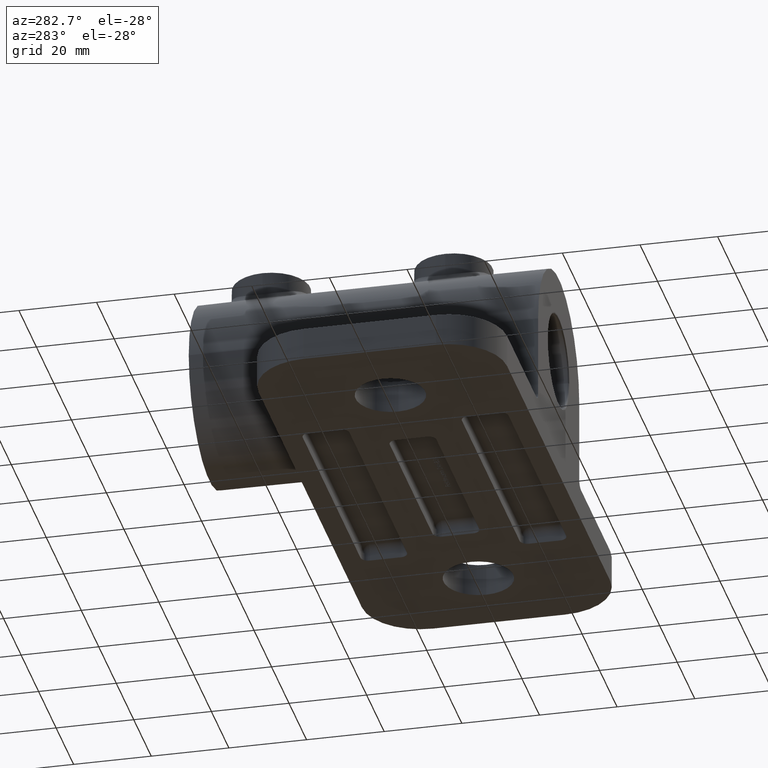
[diagram: clean part render]
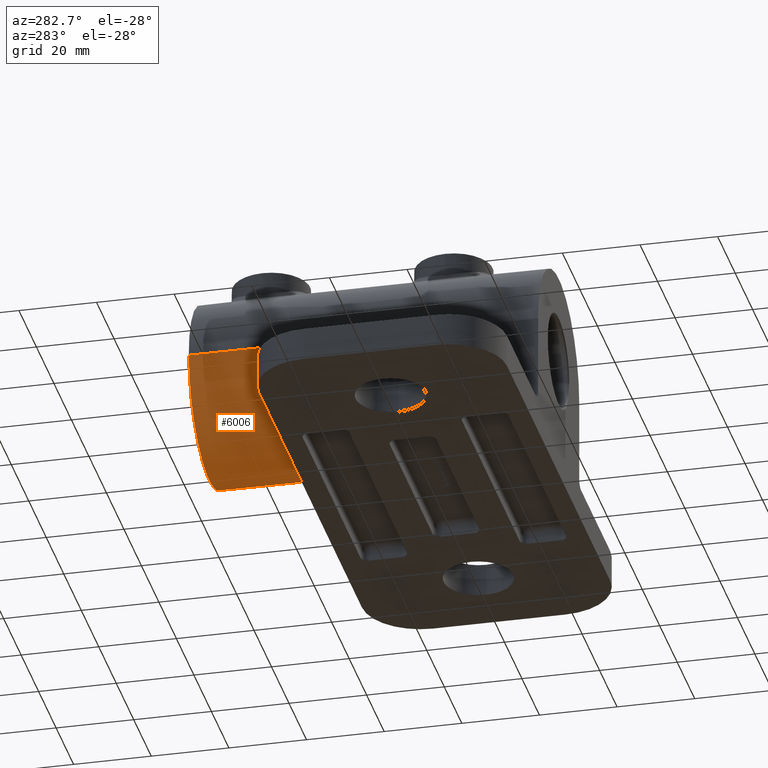
[diagram: same view with one face highlighted and labeled with its STEP entity id]
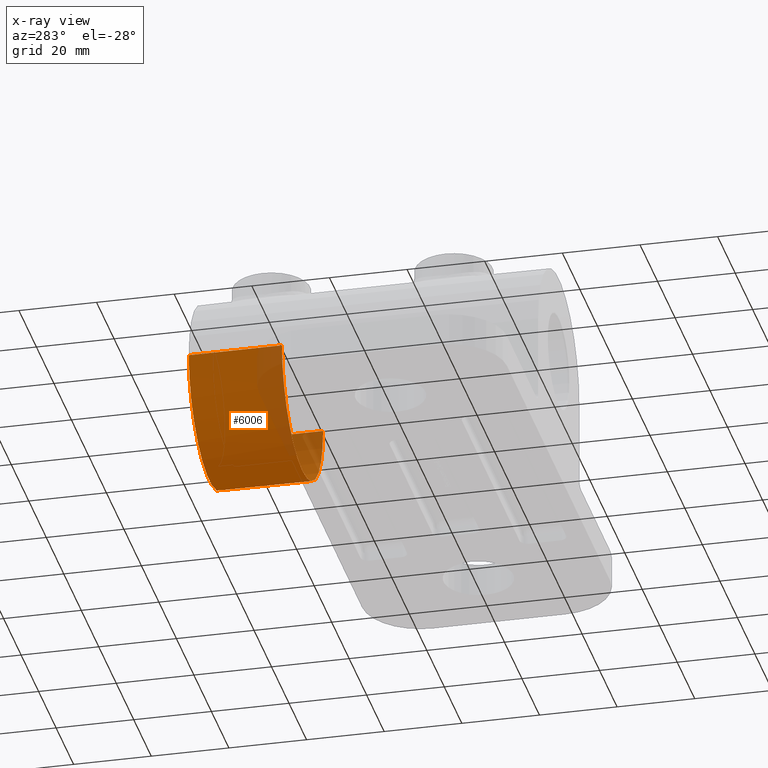
[diagram: x-ray of the same camera — body ghosted, the highlighted face saturated]
A machine part, auxiliary view. The second image highlights one B-rep face of the part: STEP entity #6006.
The next image is the same camera in x-ray: the body ghosted, the highlighted face saturated — about 24% of this face is hidden behind the body in this view.
In plain terms, the highlighted cylindrical surface (partial cylindrical patch) has radius 23.5 mm, axis along (-0, -1, 0).
Its self-contained STEP definition (entity closure, byte-faithful):
#524 = VERTEX_POINT ( 'NONE', #4832 ) ;
#1143 = ORIENTED_EDGE ( 'NONE', *, *, #6979, .T. ) ;
#1226 = DIRECTION ( 'NONE',  ( 0.0000000000000000000, 0.0000000000000000000, -1.000000000000000000 ) ) ;
#1492 = CYLINDRICAL_SURFACE ( 'NONE', #3073, 23.50000000000000400 ) ;
#1649 = CARTESIAN_POINT ( 'NONE',  ( 6.938893903907231500E-015, 57.99999999999997900, 32.00000000000000000 ) ) ;
#2412 = CARTESIAN_POINT ( 'NONE',  ( 4.688441826964346300E-015, 33.99999999999998600, 32.00000000000000000 ) ) ;
#2462 = EDGE_CURVE ( 'NONE', #4093, #2928, #11812, .T. ) ;
#2515 = VECTOR ( 'NONE', #9520, 1000.000000000000000 ) ;
#2736 = DIRECTION ( 'NONE',  ( -0.0000000000000000000, 1.000000000000000000, -0.0000000000000000000 ) ) ;
#2826 = ORIENTED_EDGE ( 'NONE', *, *, #2462, .T. ) ;
#2928 = VERTEX_POINT ( 'NONE', #12697 ) ;
#3073 = AXIS2_PLACEMENT_3D ( 'NONE', #1649, #4143, #12817 ) ;
#3638 = DIRECTION ( 'NONE',  ( -9.376883653928692300E-017, -1.000000000000000000, 0.0000000000000000000 ) ) ;
#3981 = DIRECTION ( 'NONE',  ( 0.0000000000000000000, 0.0000000000000000000, -1.000000000000000000 ) ) ;
#4093 = VERTEX_POINT ( 'NONE', #5992 ) ;
#4143 = DIRECTION ( 'NONE',  ( -9.376883653928692300E-017, -1.000000000000000000, 0.0000000000000000000 ) ) ;
#4380 = ORIENTED_EDGE ( 'NONE', *, *, #15882, .T. ) ;
#4832 = CARTESIAN_POINT ( 'NONE',  ( -23.49999999999999600, 57.99999999999997900, 32.00000000000000000 ) ) ;
#5051 = ORIENTED_EDGE ( 'NONE', *, *, #5639, .T. ) ;
#5639 = EDGE_CURVE ( 'NONE', #14837, #9707, #14236, .T. ) ;
#5658 = CARTESIAN_POINT ( 'NONE',  ( -23.50000000000000000, 33.99999999999998600, 32.00000000000000000 ) ) ;
#5992 = CARTESIAN_POINT ( 'NONE',  ( 23.50000000000001100, 57.99999999999997900, 32.00000000000000000 ) ) ;
#6006 = ADVANCED_FACE ( 'NONE', ( #8090 ), #1492, .T. ) ;
#6082 = EDGE_LOOP ( 'NONE', ( #12531, #4380, #2826, #1143, #5051 ) ) ;
#6652 = CARTESIAN_POINT ( 'NONE',  ( 6.938893903907231500E-015, 57.99999999999997900, 32.00000000000000000 ) ) ;
#6979 = EDGE_CURVE ( 'NONE', #2928, #14837, #10581, .T. ) ;
#7366 = DIRECTION ( 'NONE',  ( -0.0000000000000000000, 1.000000000000000000, -0.0000000000000000000 ) ) ;
#7729 = DIRECTION ( 'NONE',  ( 1.000000000000000000, 0.0000000000000000000, 0.0000000000000000000 ) ) ;
#8090 = FACE_OUTER_BOUND ( 'NONE', #6082, .T. ) ;
#9126 = DIRECTION ( 'NONE',  ( -9.376883653928691100E-017, -1.000000000000000000, 0.0000000000000000000 ) ) ;
#9520 = DIRECTION ( 'NONE',  ( -9.376883653928692300E-017, -1.000000000000000000, 0.0000000000000000000 ) ) ;
#9707 = VERTEX_POINT ( 'NONE', #5658 ) ;
#10146 = CARTESIAN_POINT ( 'NONE',  ( 4.688441826964346300E-015, 33.99999999999998600, 32.00000000000000000 ) ) ;
#10336 = EDGE_CURVE ( 'NONE', #524, #9707, #10822, .T. ) ;
#10581 = CIRCLE ( 'NONE', #13645, 23.50000000000000400 ) ;
#10822 = LINE ( 'NONE', #15792, #2515 ) ;
#11192 = CARTESIAN_POINT ( 'NONE',  ( 4.688441826964346300E-015, 33.99999999999998600, 8.499999999999992900 ) ) ;
#11748 = AXIS2_PLACEMENT_3D ( 'NONE', #2412, #7366, #1226 ) ;
#11812 = LINE ( 'NONE', #14745, #13950 ) ;
#12239 = AXIS2_PLACEMENT_3D ( 'NONE', #6652, #9126, #7729 ) ;
#12531 = ORIENTED_EDGE ( 'NONE', *, *, #10336, .F. ) ;
#12697 = CARTESIAN_POINT ( 'NONE',  ( 23.50000000000001400, 33.99999999999998600, 32.00000000000000000 ) ) ;
#12817 = DIRECTION ( 'NONE',  ( 1.000000000000000000, 0.0000000000000000000, 0.0000000000000000000 ) ) ;
#13645 = AXIS2_PLACEMENT_3D ( 'NONE', #10146, #2736, #3981 ) ;
#13950 = VECTOR ( 'NONE', #3638, 1000.000000000000000 ) ;
#14236 = CIRCLE ( 'NONE', #11748, 23.50000000000000400 ) ;
#14745 = CARTESIAN_POINT ( 'NONE',  ( 23.50000000000001100, 57.99999999999997900, 32.00000000000000000 ) ) ;
#14837 = VERTEX_POINT ( 'NONE', #11192 ) ;
#15083 = CIRCLE ( 'NONE', #12239, 23.50000000000000400 ) ;
#15792 = CARTESIAN_POINT ( 'NONE',  ( -23.49999999999999600, 57.99999999999997900, 32.00000000000000000 ) ) ;
#15882 = EDGE_CURVE ( 'NONE', #524, #4093, #15083, .T. ) ;